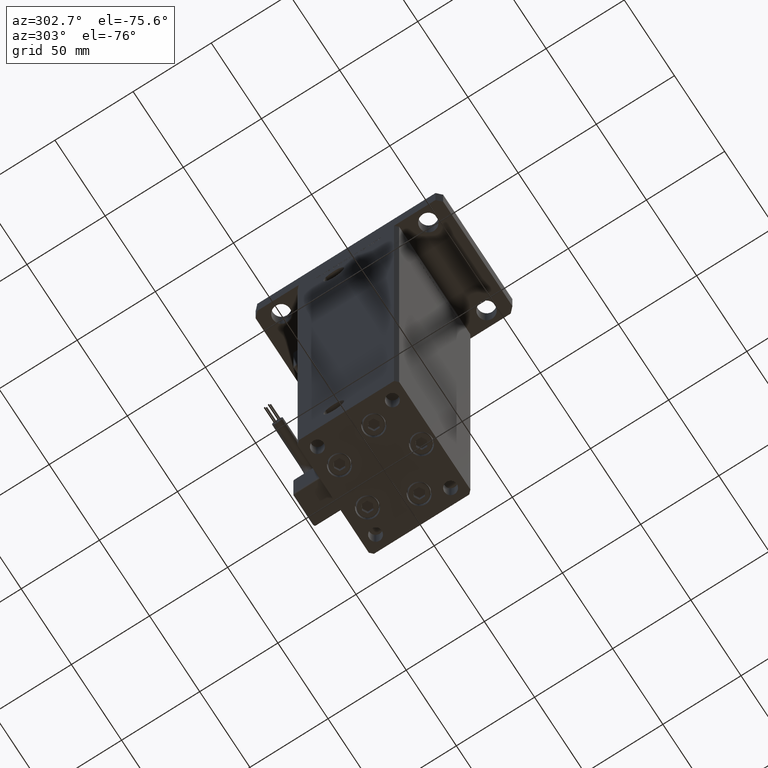
[diagram: clean part render]
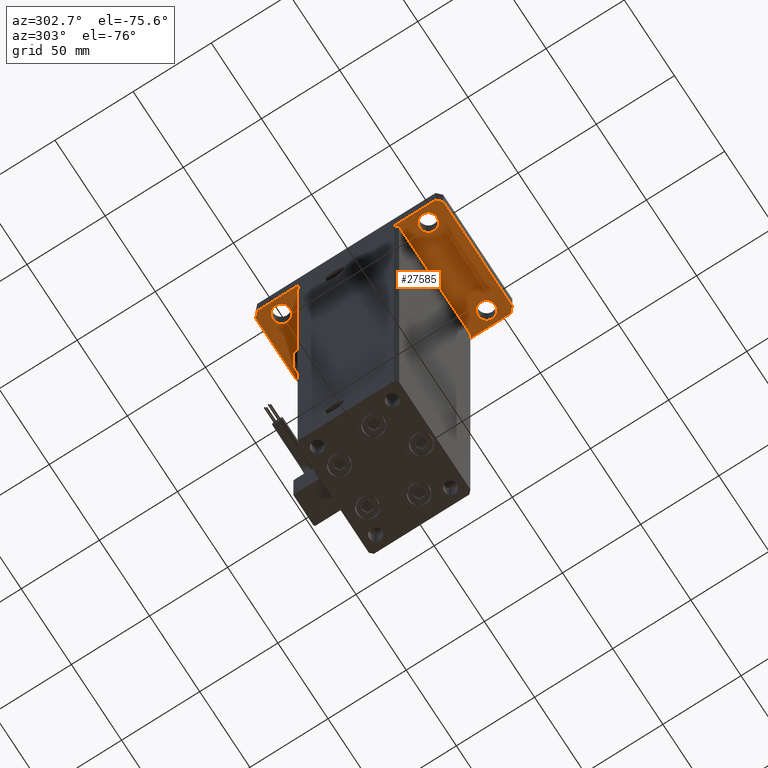
[diagram: same view with one face highlighted and labeled with its STEP entity id]
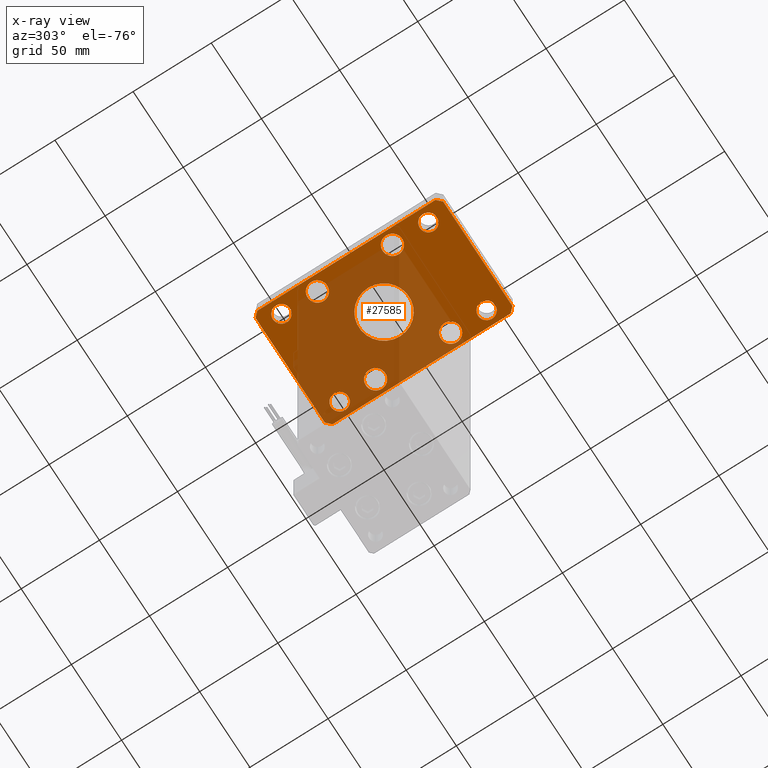
[diagram: x-ray of the same camera — body ghosted, the highlighted face saturated]
A machine part, auxiliary view. The second image highlights one B-rep face of the part: STEP entity #27585.
The next image is the same camera in x-ray: the body ghosted, the highlighted face saturated — about 58% of this face is hidden behind the body in this view.
In plain terms, the highlighted planar face has unit normal (0, 0, 1).
Its self-contained STEP definition (entity closure, byte-faithful):
#4 = CARTESIAN_POINT ( 'NONE',  ( -22.75000000000000000, -24.00000000000002132, 0.000000000000000000 ) ) ;
#9 = CARTESIAN_POINT ( 'NONE',  ( -28.99999999999999645, -47.00000000000002132, 0.000000000000000000 ) ) ;
#601 = DIRECTION ( 'NONE',  ( 0.000000000000000000, 0.000000000000000000, 1.000000000000000000 ) ) ;
#1358 = AXIS2_PLACEMENT_3D ( 'NONE', #8568, #46955, #25486 ) ;
#1742 = CARTESIAN_POINT ( 'NONE',  ( 29.00000000000000711, 47.00000000000000711, 0.000000000000000000 ) ) ;
#1775 = EDGE_CURVE ( 'NONE', #26922, #6086, #41359, .T. ) ;
#2171 = CARTESIAN_POINT ( 'NONE',  ( -28.99999999999999645, -24.00000000000002132, 0.000000000000000000 ) ) ;
#2456 = ORIENTED_EDGE ( 'NONE', *, *, #7808, .T. ) ;
#2857 = EDGE_LOOP ( 'NONE', ( #20420, #7100 ) ) ;
#3067 = AXIS2_PLACEMENT_3D ( 'NONE', #38307, #47174, #7939 ) ;
#3336 = DIRECTION ( 'NONE',  ( -1.000000000000000000, 0.000000000000000000, 0.000000000000000000 ) ) ;
#3833 = AXIS2_PLACEMENT_3D ( 'NONE', #9, #601, #34945 ) ;
#3959 = CIRCLE ( 'NONE', #28695, 6.249999999999998224 ) ;
#4115 = AXIS2_PLACEMENT_3D ( 'NONE', #55034, #50744, #11532 ) ;
#4117 = FACE_OUTER_BOUND ( 'NONE', #50832, .T. ) ;
#4197 = ORIENTED_EDGE ( 'NONE', *, *, #54661, .F. ) ;
#4351 = EDGE_LOOP ( 'NONE', ( #7053, #5516 ) ) ;
#5056 = ORIENTED_EDGE ( 'NONE', *, *, #37838, .T. ) ;
#5072 = AXIS2_PLACEMENT_3D ( 'NONE', #36882, #32020, #36331 ) ;
#5516 = ORIENTED_EDGE ( 'NONE', *, *, #27391, .T. ) ;
#5765 = CARTESIAN_POINT ( 'NONE',  ( 23.50000000000001776, -47.00000000000001421, 0.000000000000000000 ) ) ;
#6086 = VERTEX_POINT ( 'NONE', #38767 ) ;
#6611 = CARTESIAN_POINT ( 'NONE',  ( -29.00000000000000355, 47.00000000000000000, 0.000000000000000000 ) ) ;
#6817 = VERTEX_POINT ( 'NONE', #32816 ) ;
#6833 = CARTESIAN_POINT ( 'NONE',  ( -34.49999999999992184, 59.99999999999997158, 0.000000000000000000 ) ) ;
#7053 = ORIENTED_EDGE ( 'NONE', *, *, #23829, .T. ) ;
#7100 = ORIENTED_EDGE ( 'NONE', *, *, #9517, .T. ) ;
#7161 = CARTESIAN_POINT ( 'NONE',  ( -34.50000000000000000, 47.00000000000000000, 0.000000000000000000 ) ) ;
#7446 = EDGE_CURVE ( 'NONE', #34196, #13685, #47969, .T. ) ;
#7491 = ORIENTED_EDGE ( 'NONE', *, *, #39635, .F. ) ;
#7507 = CIRCLE ( 'NONE', #3833, 5.499999999999994671 ) ;
#7728 = DIRECTION ( 'NONE',  ( 1.000000000000000000, 0.000000000000000000, 0.000000000000000000 ) ) ;
#7808 = EDGE_CURVE ( 'NONE', #47314, #14645, #27894, .T. ) ;
#7866 = AXIS2_PLACEMENT_3D ( 'NONE', #16232, #46562, #11926 ) ;
#7939 = DIRECTION ( 'NONE',  ( 1.000000000000000000, 0.000000000000000000, 0.000000000000000000 ) ) ;
#8568 = CARTESIAN_POINT ( 'NONE',  ( -29.00000000000000355, 24.00000000000000000, 0.000000000000000000 ) ) ;
#8811 = EDGE_CURVE ( 'NONE', #50515, #29842, #23979, .T. ) ;
#9272 = DIRECTION ( 'NONE',  ( 0.000000000000000000, 0.000000000000000000, 1.000000000000000000 ) ) ;
#9517 = EDGE_CURVE ( 'NONE', #13685, #34196, #29743, .T. ) ;
#10247 = DIRECTION ( 'NONE',  ( 0.000000000000000000, 0.000000000000000000, 1.000000000000000000 ) ) ;
#10284 = VERTEX_POINT ( 'NONE', #20895 ) ;
#10354 = AXIS2_PLACEMENT_3D ( 'NONE', #29841, #34426, #55623 ) ;
#11010 = CARTESIAN_POINT ( 'NONE',  ( -37.49999999999999289, -57.00000000000002132, 0.000000000000000000 ) ) ;
#11348 = EDGE_CURVE ( 'NONE', #6817, #10284, #31688, .T. ) ;
#11492 = DIRECTION ( 'NONE',  ( 1.000000000000000000, 0.000000000000000000, 0.000000000000000000 ) ) ;
#11532 = DIRECTION ( 'NONE',  ( 1.000000000000000000, 0.000000000000000000, 0.000000000000000000 ) ) ;
#11714 = LINE ( 'NONE', #6833, #30316 ) ;
#11926 = DIRECTION ( 'NONE',  ( 1.000000000000000000, 0.000000000000000000, 0.000000000000000000 ) ) ;
#12011 = CARTESIAN_POINT ( 'NONE',  ( 16.00000000000000000, 1.959434878635765131E-15, 0.000000000000000000 ) ) ;
#12043 = VERTEX_POINT ( 'NONE', #34404 ) ;
#12149 = CARTESIAN_POINT ( 'NONE',  ( 29.00000000000000711, 24.00000000000000711, 0.000000000000000000 ) ) ;
#12447 = DIRECTION ( 'NONE',  ( -1.000000000000000000, 0.000000000000000000, 0.000000000000000000 ) ) ;
#12469 = CIRCLE ( 'NONE', #7866, 6.250000000000001776 ) ;
#12780 = ORIENTED_EDGE ( 'NONE', *, *, #36458, .T. ) ;
#13004 = VERTEX_POINT ( 'NONE', #30971 ) ;
#13021 = EDGE_CURVE ( 'NONE', #52454, #28932, #50037, .T. ) ;
#13668 = VERTEX_POINT ( 'NONE', #26267 ) ;
#13685 = VERTEX_POINT ( 'NONE', #14246 ) ;
#14112 = CARTESIAN_POINT ( 'NONE',  ( 29.00000000000001066, -47.00000000000001421, 0.000000000000000000 ) ) ;
#14246 = CARTESIAN_POINT ( 'NONE',  ( -22.75000000000000711, 24.00000000000000000, 0.000000000000000000 ) ) ;
#14419 = VECTOR ( 'NONE', #19460, 1000.000000000000000 ) ;
#14645 = VERTEX_POINT ( 'NONE', #4 ) ;
#14730 = CARTESIAN_POINT ( 'NONE',  ( -16.00000000000000000, 0.000000000000000000, 0.000000000000000000 ) ) ;
#15304 = AXIS2_PLACEMENT_3D ( 'NONE', #40412, #35844, #27260 ) ;
#15308 = AXIS2_PLACEMENT_3D ( 'NONE', #6611, #29500, #7728 ) ;
#15310 = CARTESIAN_POINT ( 'NONE',  ( 22.75000000000000711, -24.00000000000001421, 0.000000000000000000 ) ) ;
#15780 = VECTOR ( 'NONE', #50791, 1000.000000000000114 ) ;
#16208 = LINE ( 'NONE', #29915, #51818 ) ;
#16209 = DIRECTION ( 'NONE',  ( 0.000000000000000000, 0.000000000000000000, 1.000000000000000000 ) ) ;
#16232 = CARTESIAN_POINT ( 'NONE',  ( 29.00000000000000711, 24.00000000000000711, 0.000000000000000000 ) ) ;
#17398 = VERTEX_POINT ( 'NONE', #19507 ) ;
#17823 = VERTEX_POINT ( 'NONE', #36000 ) ;
#18035 = CARTESIAN_POINT ( 'NONE',  ( -37.49999999999990763, 57.00000000000000711, 0.000000000000000000 ) ) ;
#18152 = EDGE_CURVE ( 'NONE', #28932, #52454, #51332, .T. ) ;
#18167 = FACE_BOUND ( 'NONE', #28367, .T. ) ;
#19460 = DIRECTION ( 'NONE',  ( 1.000000000000000000, 2.011273595335427833E-16, 0.000000000000000000 ) ) ;
#19483 = EDGE_CURVE ( 'NONE', #17823, #26361, #11714, .T. ) ;
#19507 = CARTESIAN_POINT ( 'NONE',  ( 35.25000000000000711, 24.00000000000000711, 0.000000000000000000 ) ) ;
#19509 = VERTEX_POINT ( 'NONE', #44735 ) ;
#19545 = DIRECTION ( 'NONE',  ( -7.304098846218132695E-16, -1.000000000000000000, 0.000000000000000000 ) ) ;
#20420 = ORIENTED_EDGE ( 'NONE', *, *, #7446, .T. ) ;
#20853 = CARTESIAN_POINT ( 'NONE',  ( 34.50000000000002132, -60.00000000000000711, 0.000000000000000000 ) ) ;
#20895 = CARTESIAN_POINT ( 'NONE',  ( 34.50000000000000000, 47.00000000000000711, 0.000000000000000000 ) ) ;
#20960 = ORIENTED_EDGE ( 'NONE', *, *, #11348, .T. ) ;
#21146 = CARTESIAN_POINT ( 'NONE',  ( 37.50000000000011369, 56.99999999999988631, 0.000000000000000000 ) ) ;
#21180 = LINE ( 'NONE', #38637, #37206 ) ;
#21356 = CARTESIAN_POINT ( 'NONE',  ( 0.000000000000000000, 0.000000000000000000, 0.000000000000000000 ) ) ;
#21594 = FACE_BOUND ( 'NONE', #53811, .T. ) ;
#22392 = AXIS2_PLACEMENT_3D ( 'NONE', #49765, #10247, #48914 ) ;
#22398 = VERTEX_POINT ( 'NONE', #15310 ) ;
#22618 = ORIENTED_EDGE ( 'NONE', *, *, #23035, .F. ) ;
#22675 = ORIENTED_EDGE ( 'NONE', *, *, #44409, .F. ) ;
#23035 = EDGE_CURVE ( 'NONE', #29842, #34307, #44935, .T. ) ;
#23829 = EDGE_CURVE ( 'NONE', #39956, #12043, #7507, .T. ) ;
#23979 = LINE ( 'NONE', #54879, #53547 ) ;
#24030 = LINE ( 'NONE', #46055, #14419 ) ;
#24094 = DIRECTION ( 'NONE',  ( 0.000000000000000000, 0.000000000000000000, 1.000000000000000000 ) ) ;
#25486 = DIRECTION ( 'NONE',  ( 1.000000000000000000, 0.000000000000000000, 0.000000000000000000 ) ) ;
#25747 = VECTOR ( 'NONE', #27769, 1000.000000000000000 ) ;
#25877 = FACE_BOUND ( 'NONE', #48236, .T. ) ;
#26176 = FACE_BOUND ( 'NONE', #2857, .T. ) ;
#26244 = CIRCLE ( 'NONE', #15308, 5.499999999999994671 ) ;
#26267 = CARTESIAN_POINT ( 'NONE',  ( 35.25000000000000000, -24.00000000000001421, 0.000000000000000000 ) ) ;
#26361 = VERTEX_POINT ( 'NONE', #18035 ) ;
#26907 = EDGE_CURVE ( 'NONE', #13668, #22398, #35034, .T. ) ;
#26922 = VERTEX_POINT ( 'NONE', #55340 ) ;
#27035 = CIRCLE ( 'NONE', #34327, 5.499999999999994671 ) ;
#27260 = DIRECTION ( 'NONE',  ( 1.000000000000000000, 0.000000000000000000, 0.000000000000000000 ) ) ;
#27391 = EDGE_CURVE ( 'NONE', #12043, #39956, #34160, .T. ) ;
#27585 = ADVANCED_FACE ( 'NONE', ( #25877, #4117, #39621, #48498, #18167, #21594, #30445, #35631, #26176, #35347 ), #39053, .F. ) ;
#27673 = DIRECTION ( 'NONE',  ( 1.000000000000000000, 0.000000000000000000, 0.000000000000000000 ) ) ;
#27769 = DIRECTION ( 'NONE',  ( 0.000000000000000000, 1.000000000000000000, 0.000000000000000000 ) ) ;
#27773 = AXIS2_PLACEMENT_3D ( 'NONE', #56501, #9272, #53079 ) ;
#27779 = CARTESIAN_POINT ( 'NONE',  ( -35.25000000000000000, -24.00000000000002132, 0.000000000000000000 ) ) ;
#27795 = DIRECTION ( 'NONE',  ( 0.000000000000000000, 0.000000000000000000, 1.000000000000000000 ) ) ;
#27894 = CIRCLE ( 'NONE', #53509, 6.249999999999998224 ) ;
#28278 = EDGE_CURVE ( 'NONE', #14645, #47314, #3959, .T. ) ;
#28367 = EDGE_LOOP ( 'NONE', ( #12780, #46550 ) ) ;
#28422 = ORIENTED_EDGE ( 'NONE', *, *, #19483, .F. ) ;
#28695 = AXIS2_PLACEMENT_3D ( 'NONE', #2171, #32812, #27673 ) ;
#28724 = ORIENTED_EDGE ( 'NONE', *, *, #8811, .F. ) ;
#28932 = VERTEX_POINT ( 'NONE', #5765 ) ;
#29221 = ORIENTED_EDGE ( 'NONE', *, *, #36026, .T. ) ;
#29500 = DIRECTION ( 'NONE',  ( 0.000000000000000000, 0.000000000000000000, 1.000000000000000000 ) ) ;
#29611 = DIRECTION ( 'NONE',  ( 0.000000000000000000, 0.000000000000000000, 1.000000000000000000 ) ) ;
#29743 = CIRCLE ( 'NONE', #5072, 6.249999999999998224 ) ;
#29841 = CARTESIAN_POINT ( 'NONE',  ( 29.00000000000000355, -24.00000000000001421, 0.000000000000000000 ) ) ;
#29842 = VERTEX_POINT ( 'NONE', #37601 ) ;
#29850 = ORIENTED_EDGE ( 'NONE', *, *, #38396, .F. ) ;
#29915 = CARTESIAN_POINT ( 'NONE',  ( 37.50000000000011369, 56.99999999999988631, 0.000000000000000000 ) ) ;
#30316 = VECTOR ( 'NONE', #36163, 1000.000000000000114 ) ;
#30445 = FACE_BOUND ( 'NONE', #34208, .T. ) ;
#30971 = CARTESIAN_POINT ( 'NONE',  ( 22.75000000000000355, 24.00000000000000711, 0.000000000000000000 ) ) ;
#31507 = CARTESIAN_POINT ( 'NONE',  ( 34.50000000000000711, -47.00000000000001421, 0.000000000000000000 ) ) ;
#31688 = CIRCLE ( 'NONE', #44463, 5.499999999999994671 ) ;
#32020 = DIRECTION ( 'NONE',  ( 0.000000000000000000, 0.000000000000000000, 1.000000000000000000 ) ) ;
#32188 = VERTEX_POINT ( 'NONE', #7161 ) ;
#32406 = DIRECTION ( 'NONE',  ( 0.000000000000000000, 0.000000000000000000, 1.000000000000000000 ) ) ;
#32812 = DIRECTION ( 'NONE',  ( 0.000000000000000000, 0.000000000000000000, 1.000000000000000000 ) ) ;
#32816 = CARTESIAN_POINT ( 'NONE',  ( 23.50000000000001776, 47.00000000000000711, 0.000000000000000000 ) ) ;
#33242 = CARTESIAN_POINT ( 'NONE',  ( -29.00000000000000355, 47.00000000000000000, 0.000000000000000000 ) ) ;
#33380 = DIRECTION ( 'NONE',  ( -0.7071067811865335839, 0.7071067811865614505, 0.000000000000000000 ) ) ;
#34064 = DIRECTION ( 'NONE',  ( -1.000000000000000000, -2.011273595335426847E-16, 0.000000000000000000 ) ) ;
#34142 = CARTESIAN_POINT ( 'NONE',  ( -34.49999999999999289, -47.00000000000002132, 0.000000000000000000 ) ) ;
#34160 = CIRCLE ( 'NONE', #3067, 5.499999999999994671 ) ;
#34196 = VERTEX_POINT ( 'NONE', #36938 ) ;
#34208 = EDGE_LOOP ( 'NONE', ( #29221, #54702 ) ) ;
#34307 = VERTEX_POINT ( 'NONE', #21146 ) ;
#34327 = AXIS2_PLACEMENT_3D ( 'NONE', #33242, #24094, #11492 ) ;
#34404 = CARTESIAN_POINT ( 'NONE',  ( -23.50000000000000355, -47.00000000000002132, 0.000000000000000000 ) ) ;
#34426 = DIRECTION ( 'NONE',  ( 0.000000000000000000, 0.000000000000000000, 1.000000000000000000 ) ) ;
#34945 = DIRECTION ( 'NONE',  ( 1.000000000000000000, 0.000000000000000000, 0.000000000000000000 ) ) ;
#35034 = CIRCLE ( 'NONE', #10354, 6.249999999999998224 ) ;
#35347 = FACE_BOUND ( 'NONE', #52501, .T. ) ;
#35588 = DIRECTION ( 'NONE',  ( 1.000000000000000000, 0.000000000000000000, 0.000000000000000000 ) ) ;
#35631 = FACE_BOUND ( 'NONE', #43206, .T. ) ;
#35690 = ORIENTED_EDGE ( 'NONE', *, *, #1775, .F. ) ;
#35844 = DIRECTION ( 'NONE',  ( 0.000000000000000000, 0.000000000000000000, 1.000000000000000000 ) ) ;
#36000 = CARTESIAN_POINT ( 'NONE',  ( -34.49999999999992184, 59.99999999999997158, 0.000000000000000000 ) ) ;
#36026 = EDGE_CURVE ( 'NONE', #22398, #13668, #47115, .T. ) ;
#36163 = DIRECTION ( 'NONE',  ( -0.7071067811865507924, -0.7071067811865442421, 0.000000000000000000 ) ) ;
#36331 = DIRECTION ( 'NONE',  ( 1.000000000000000000, 0.000000000000000000, 0.000000000000000000 ) ) ;
#36420 = EDGE_LOOP ( 'NONE', ( #20960, #40981 ) ) ;
#36458 = EDGE_CURVE ( 'NONE', #32188, #19509, #27035, .T. ) ;
#36882 = CARTESIAN_POINT ( 'NONE',  ( -29.00000000000000355, 24.00000000000000000, 0.000000000000000000 ) ) ;
#36938 = CARTESIAN_POINT ( 'NONE',  ( -35.25000000000000000, 24.00000000000000000, 0.000000000000000000 ) ) ;
#37156 = DIRECTION ( 'NONE',  ( 0.7071067811865467956, 0.7071067811865483499, 0.000000000000000000 ) ) ;
#37206 = VECTOR ( 'NONE', #34064, 1000.000000000000000 ) ;
#37601 = CARTESIAN_POINT ( 'NONE',  ( 37.50000000000011369, -56.99999999999990763, 0.000000000000000000 ) ) ;
#37838 = EDGE_CURVE ( 'NONE', #17398, #13004, #12469, .T. ) ;
#38118 = ORIENTED_EDGE ( 'NONE', *, *, #28278, .T. ) ;
#38219 = CARTESIAN_POINT ( 'NONE',  ( 0.000000000000000000, 0.000000000000000000, 0.000000000000000000 ) ) ;
#38239 = DIRECTION ( 'NONE',  ( 1.000000000000000000, 0.000000000000000000, 0.000000000000000000 ) ) ;
#38272 = CARTESIAN_POINT ( 'NONE',  ( 34.50000000000013500, 59.99999999999998579, 0.000000000000000000 ) ) ;
#38307 = CARTESIAN_POINT ( 'NONE',  ( -28.99999999999999645, -47.00000000000002132, 0.000000000000000000 ) ) ;
#38396 = EDGE_CURVE ( 'NONE', #26361, #26922, #49612, .T. ) ;
#38637 = CARTESIAN_POINT ( 'NONE',  ( 34.50000000000013500, 59.99999999999998579, 0.000000000000000000 ) ) ;
#38767 = CARTESIAN_POINT ( 'NONE',  ( -34.49999999999999289, -60.00000000000002132, 0.000000000000000000 ) ) ;
#38801 = VERTEX_POINT ( 'NONE', #14730 ) ;
#39053 = PLANE ( 'NONE',  #27773 ) ;
#39129 = ORIENTED_EDGE ( 'NONE', *, *, #46746, .T. ) ;
#39465 = EDGE_CURVE ( 'NONE', #45637, #17823, #21180, .T. ) ;
#39621 = FACE_BOUND ( 'NONE', #4351, .T. ) ;
#39635 = EDGE_CURVE ( 'NONE', #34307, #45637, #16208, .T. ) ;
#39956 = VERTEX_POINT ( 'NONE', #34142 ) ;
#39965 = ORIENTED_EDGE ( 'NONE', *, *, #18152, .T. ) ;
#40225 = EDGE_CURVE ( 'NONE', #19509, #32188, #26244, .T. ) ;
#40412 = CARTESIAN_POINT ( 'NONE',  ( 29.00000000000001066, -47.00000000000001421, 0.000000000000000000 ) ) ;
#40742 = CARTESIAN_POINT ( 'NONE',  ( -37.49999999999990763, 57.00000000000000711, 0.000000000000000000 ) ) ;
#40981 = ORIENTED_EDGE ( 'NONE', *, *, #55976, .T. ) ;
#41144 = EDGE_CURVE ( 'NONE', #6086, #50515, #24030, .T. ) ;
#41196 = CARTESIAN_POINT ( 'NONE',  ( -28.99999999999999645, -24.00000000000002132, 0.000000000000000000 ) ) ;
#41213 = CARTESIAN_POINT ( 'NONE',  ( 37.50000000000011369, -56.99999999999990763, 0.000000000000000000 ) ) ;
#41359 = LINE ( 'NONE', #11010, #15780 ) ;
#41611 = ORIENTED_EDGE ( 'NONE', *, *, #13021, .T. ) ;
#42307 = CIRCLE ( 'NONE', #55112, 6.250000000000001776 ) ;
#43206 = EDGE_LOOP ( 'NONE', ( #39129, #5056 ) ) ;
#43758 = CIRCLE ( 'NONE', #46541, 16.00000000000000000 ) ;
#44409 = EDGE_CURVE ( 'NONE', #49580, #38801, #43758, .T. ) ;
#44463 = AXIS2_PLACEMENT_3D ( 'NONE', #1742, #27795, #49552 ) ;
#44735 = CARTESIAN_POINT ( 'NONE',  ( -23.50000000000001066, 47.00000000000000000, 0.000000000000000000 ) ) ;
#44935 = LINE ( 'NONE', #41213, #25747 ) ;
#45637 = VERTEX_POINT ( 'NONE', #38272 ) ;
#46055 = CARTESIAN_POINT ( 'NONE',  ( -34.49999999999999289, -60.00000000000002132, 0.000000000000000000 ) ) ;
#46541 = AXIS2_PLACEMENT_3D ( 'NONE', #21356, #55981, #3336 ) ;
#46550 = ORIENTED_EDGE ( 'NONE', *, *, #40225, .T. ) ;
#46562 = DIRECTION ( 'NONE',  ( 0.000000000000000000, 0.000000000000000000, 1.000000000000000000 ) ) ;
#46746 = EDGE_CURVE ( 'NONE', #13004, #17398, #42307, .T. ) ;
#46755 = AXIS2_PLACEMENT_3D ( 'NONE', #14112, #32406, #35588 ) ;
#46955 = DIRECTION ( 'NONE',  ( 0.000000000000000000, 0.000000000000000000, 1.000000000000000000 ) ) ;
#47047 = CIRCLE ( 'NONE', #22392, 5.499999999999994671 ) ;
#47115 = CIRCLE ( 'NONE', #4115, 6.249999999999998224 ) ;
#47174 = DIRECTION ( 'NONE',  ( 0.000000000000000000, 0.000000000000000000, 1.000000000000000000 ) ) ;
#47314 = VERTEX_POINT ( 'NONE', #27779 ) ;
#47969 = CIRCLE ( 'NONE', #1358, 6.249999999999998224 ) ;
#48103 = VECTOR ( 'NONE', #19545, 1000.000000000000000 ) ;
#48236 = EDGE_LOOP ( 'NONE', ( #4197, #22675 ) ) ;
#48498 = FACE_BOUND ( 'NONE', #36420, .T. ) ;
#48830 = CIRCLE ( 'NONE', #56117, 16.00000000000000000 ) ;
#48914 = DIRECTION ( 'NONE',  ( 1.000000000000000000, 0.000000000000000000, 0.000000000000000000 ) ) ;
#49552 = DIRECTION ( 'NONE',  ( 1.000000000000000000, 0.000000000000000000, 0.000000000000000000 ) ) ;
#49580 = VERTEX_POINT ( 'NONE', #12011 ) ;
#49612 = LINE ( 'NONE', #40742, #48103 ) ;
#49765 = CARTESIAN_POINT ( 'NONE',  ( 29.00000000000000711, 47.00000000000000711, 0.000000000000000000 ) ) ;
#50037 = CIRCLE ( 'NONE', #15304, 5.499999999999998224 ) ;
#50515 = VERTEX_POINT ( 'NONE', #20853 ) ;
#50744 = DIRECTION ( 'NONE',  ( 0.000000000000000000, 0.000000000000000000, 1.000000000000000000 ) ) ;
#50791 = DIRECTION ( 'NONE',  ( 0.7071067811865474617, -0.7071067811865474617, 0.000000000000000000 ) ) ;
#50832 = EDGE_LOOP ( 'NONE', ( #56233, #35690, #29850, #28422, #55197, #7491, #22618, #28724 ) ) ;
#51332 = CIRCLE ( 'NONE', #46755, 5.499999999999998224 ) ;
#51647 = DIRECTION ( 'NONE',  ( 1.000000000000000000, 0.000000000000000000, 0.000000000000000000 ) ) ;
#51651 = DIRECTION ( 'NONE',  ( 0.000000000000000000, 0.000000000000000000, -1.000000000000000000 ) ) ;
#51818 = VECTOR ( 'NONE', #33380, 1000.000000000000000 ) ;
#52454 = VERTEX_POINT ( 'NONE', #31507 ) ;
#52501 = EDGE_LOOP ( 'NONE', ( #39965, #41611 ) ) ;
#53079 = DIRECTION ( 'NONE',  ( 1.000000000000000000, 0.000000000000000000, -0.000000000000000000 ) ) ;
#53509 = AXIS2_PLACEMENT_3D ( 'NONE', #41196, #16209, #38239 ) ;
#53547 = VECTOR ( 'NONE', #37156, 1000.000000000000000 ) ;
#53811 = EDGE_LOOP ( 'NONE', ( #2456, #38118 ) ) ;
#54661 = EDGE_CURVE ( 'NONE', #38801, #49580, #48830, .T. ) ;
#54702 = ORIENTED_EDGE ( 'NONE', *, *, #26907, .T. ) ;
#54879 = CARTESIAN_POINT ( 'NONE',  ( 34.50000000000002132, -60.00000000000000711, 0.000000000000000000 ) ) ;
#55034 = CARTESIAN_POINT ( 'NONE',  ( 29.00000000000000355, -24.00000000000001421, 0.000000000000000000 ) ) ;
#55112 = AXIS2_PLACEMENT_3D ( 'NONE', #12149, #29611, #51647 ) ;
#55197 = ORIENTED_EDGE ( 'NONE', *, *, #39465, .F. ) ;
#55340 = CARTESIAN_POINT ( 'NONE',  ( -37.49999999999999289, -57.00000000000002132, 0.000000000000000000 ) ) ;
#55623 = DIRECTION ( 'NONE',  ( 1.000000000000000000, 0.000000000000000000, 0.000000000000000000 ) ) ;
#55976 = EDGE_CURVE ( 'NONE', #10284, #6817, #47047, .T. ) ;
#55981 = DIRECTION ( 'NONE',  ( 0.000000000000000000, 0.000000000000000000, -1.000000000000000000 ) ) ;
#56117 = AXIS2_PLACEMENT_3D ( 'NONE', #38219, #51651, #12447 ) ;
#56233 = ORIENTED_EDGE ( 'NONE', *, *, #41144, .F. ) ;
#56501 = CARTESIAN_POINT ( 'NONE',  ( 0.000000000000000000, 0.000000000000000000, 0.000000000000000000 ) ) ;